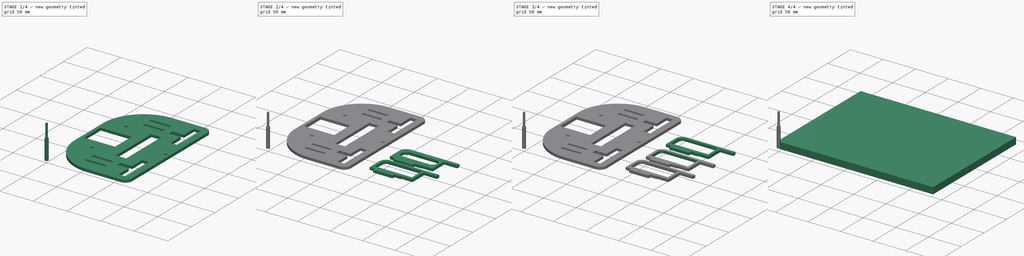
[diagram: build sequence overview — one tinted view per stage of 4, left to right]
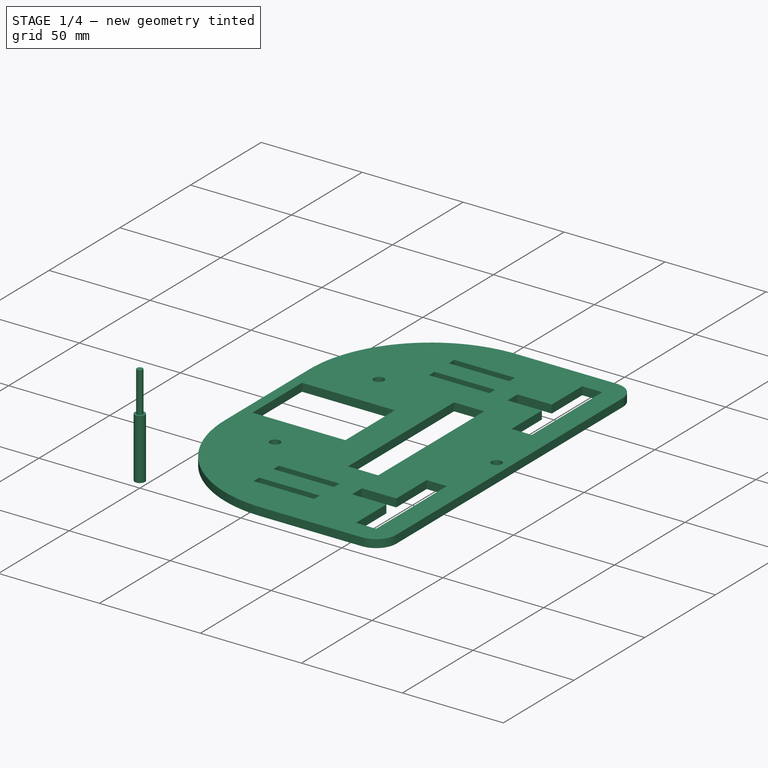
[diagram: stage 1 of 4 — iso view after this stage's code; geometry added in this stage tinted green]
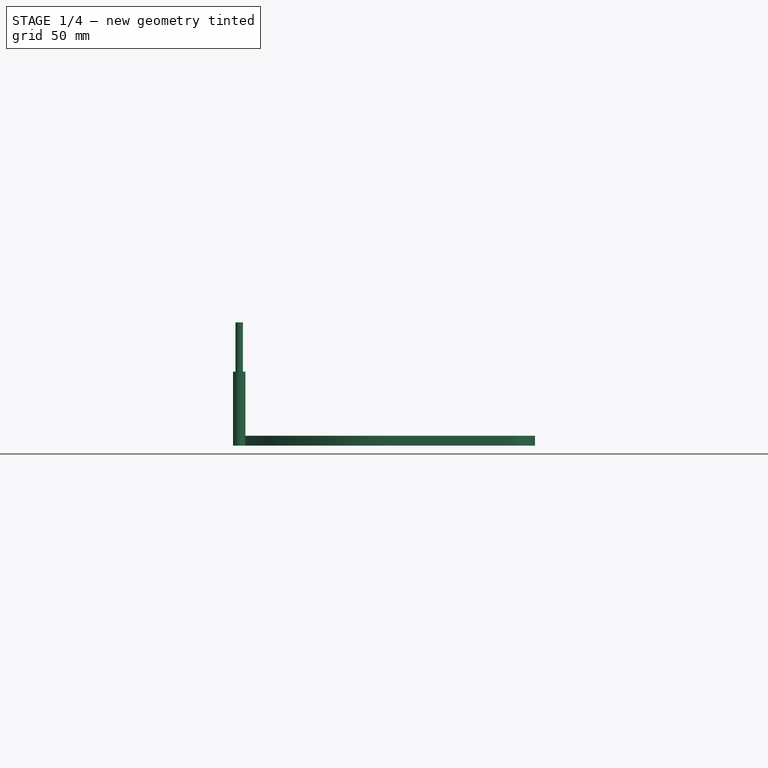
[diagram: stage 1 of 4 — front view after this stage's code; geometry added in this stage tinted green]
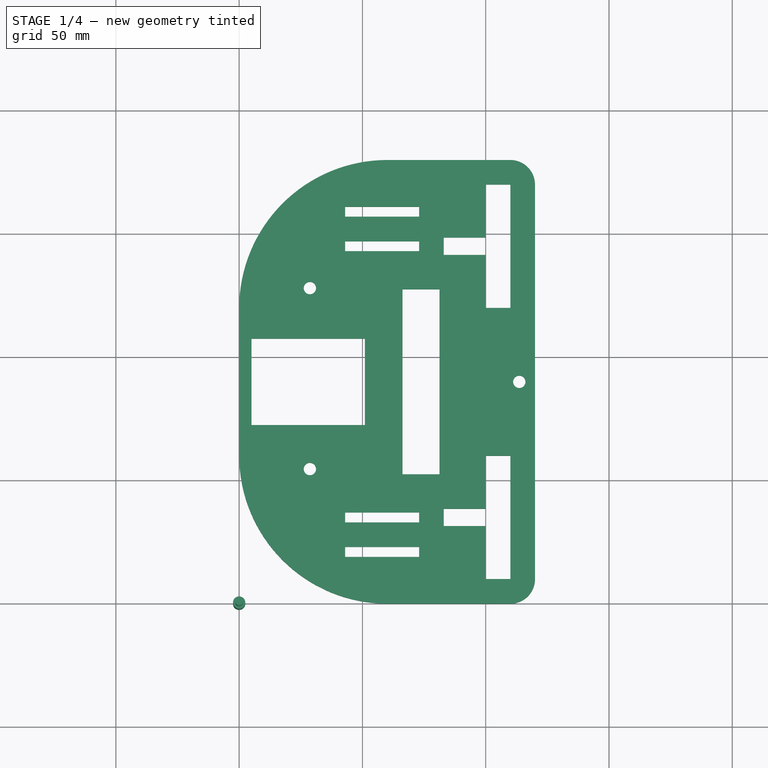
[diagram: stage 1 of 4 — top view after this stage's code; geometry added in this stage tinted green]
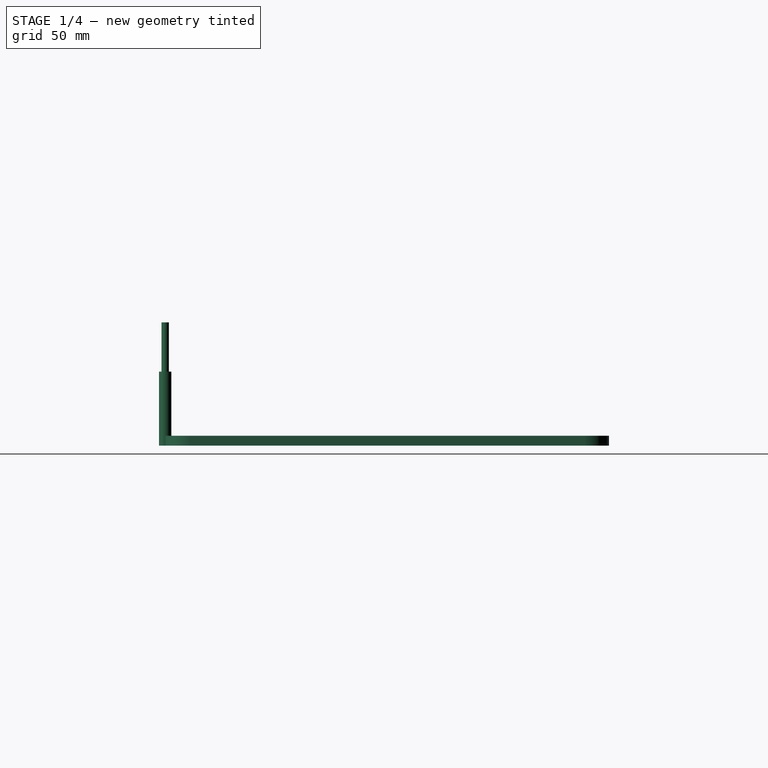
[diagram: stage 1 of 4 — right view after this stage's code; geometry added in this stage tinted green]
FCSTD DOCUMENT  (FreeCAD 0.21R33771 (Git))
Label: testframe_2
License: All rights reserved
LicenseURL: https://en.wikipedia.org/wiki/All_rights_reserved
objects: Part::FeaturePython×12, Path::FeaturePython×9, TechDraw::DrawViewDraft×5, App::DocumentObjectGroup×3, Sketcher::SketchObject×1, PartDesign::Body×1, TechDraw::DrawSVGTemplate×1, TechDraw::DrawPage×1, App::FeaturePython×1
note: 15 computed .brp shape members not serialized (recipe doc carries the construction recipe); baked Part::Feature solids carry a one-line shape summary decoded from their .brp

FEATURE [Part::FeaturePython] b_FRAME_BASE_001_  label="FRAME_BASE_001"  # a2plus imported part (geometry in sourceFile) (typed FeaturePython)
  a2p_Version = V0.1
  fixedPosition = true
  objectType = a2pPart
  sourceFile = ./FRAME_BASE.FCStd
  subassemblyImport = false
  timeLastImport = 1.75103e+09
  updateColors = true
FEATURE [TechDraw::DrawSVGTemplate] Template
  Height = 210
  Orientation = 1
  Template = <path>
  Width = 297
FEATURE [TechDraw::DrawViewDraft] DraftView
  Direction = (0,0,1)
  FontSize = 12
  LineSpacing = 1
  LineStyle = Solid
  LineWidth = 0.35
  LockPosition = false
  OverrideStyle = false
  Rotation = 0
  ScaleType = 2
  Source = -> b_FRAME_STRUT_01_001_003
  Symbol = <blob: 9717 chars omitted>
  X = 209.6
  Y = 29.1324
FEATURE [TechDraw::DrawViewDraft] DraftView001
  Direction = (0,0,1)
  FontSize = 12
  LineSpacing = 1
  LineStyle = Solid
  LineWidth = 0.35
  LockPosition = false
  OverrideStyle = false
  Rotation = 0
  ScaleType = 2
  Source = -> b_FRAME_STRUT_01_001_002
  Symbol = <blob: 8947 chars omitted>
  X = 209.6
  Y = 78.3595
FEATURE [TechDraw::DrawViewDraft] DraftView002
  Direction = (0,0,1)
  FontSize = 12
  LineSpacing = 1
  LineStyle = Solid
  LineWidth = 0.35
  LockPosition = false
  OverrideStyle = false
  Rotation = 0
  ScaleType = 2
  Source = -> b_FRAME_STRUT_01_001_001
  Symbol = <blob: 9847 chars omitted>
  X = 209.6
  Y = 127.587
FEATURE [TechDraw::DrawViewDraft] DraftView003
  Direction = (0,0,1)
  FontSize = 12
  LineSpacing = 1
  LineStyle = Solid
  LineWidth = 0.35
  LockPosition = false
  OverrideStyle = false
  Rotation = 0
  ScaleType = 2
  Source = -> b_FRAME_STRUT_01_001_
  Symbol = <blob: 9185 chars omitted>
  X = 209.6
  Y = 180.288
FEATURE [TechDraw::DrawViewDraft] DraftView004
  Direction = (0,0,1)
  FontSize = 12
  LineSpacing = 1
  LineStyle = Solid
  LineWidth = 0.35
  LockPosition = false
  OverrideStyle = false
  Rotation = 0
  ScaleType = 2
  Source = -> b_FRAME_BASE_001_
  Symbol = <blob: 17625 chars omitted>
  X = 71.7636
  Y = 110.502
FEATURE [TechDraw::DrawPage] Page
  KeepUpdated = true
  NextBalloonIndex = 1
  ProjectionType = 0
  Template = -> Template
  Views = -> [DraftView,DraftView001,DraftView002,DraftView003,DraftView004]
FEATURE [App::FeaturePython] SetupSheet  # Path/CAM operation (typed FeaturePython)
  ClearanceHeightExpression = OpStockZMax+SetupSheet.ClearanceHeightOffset
  ClearanceHeightOffset = 5
  CoolantMode = 0
  CoolantModes = None | Flood | Mist
  FinalDepthExpression = OpFinalDepth
  HorizRapid = 0
  SafeHeightExpression = OpStockZMax+SetupSheet.SafeHeightOffset
  SafeHeightOffset = 3
  StartDepthExpression = OpStartDepth
  StepDownExpression = OpToolDiameter
  VertRapid = 0
FEATURE [Part::FeaturePython] Clone  label="Model-FRAME_BASE_001"  # Draft clone (typed FeaturePython)
  AttacherType = Attacher::AttachEngine3D
  Fuse = false
  Objects = -> [b_FRAME_BASE_001_]
  PathResource = Model
  Scale = (1,1,1)
FEATURE [App::DocumentObjectGroup] Model
  Group = -> [Clone,Clone001,Clone002,Clone003,Clone004]
FEATURE [Part::FeaturePython] ToolBit  label="Endmill"  # Path/CAM toolbit (typed FeaturePython)
  BitPropertyNames = Chipload | CuttingEdgeHeight | Diameter | Flutes | Length | Material | ShankDiameter | SpindleDirection
  BitShape = <path>
  Chipload = 0
  CuttingEdgeHeight = 30
  Diameter = 5
  Flutes = 0
  Length = 50
  Material = 0
  ShankDiameter = 3
  ShapeName = endmill
  SpindleDirection = 0
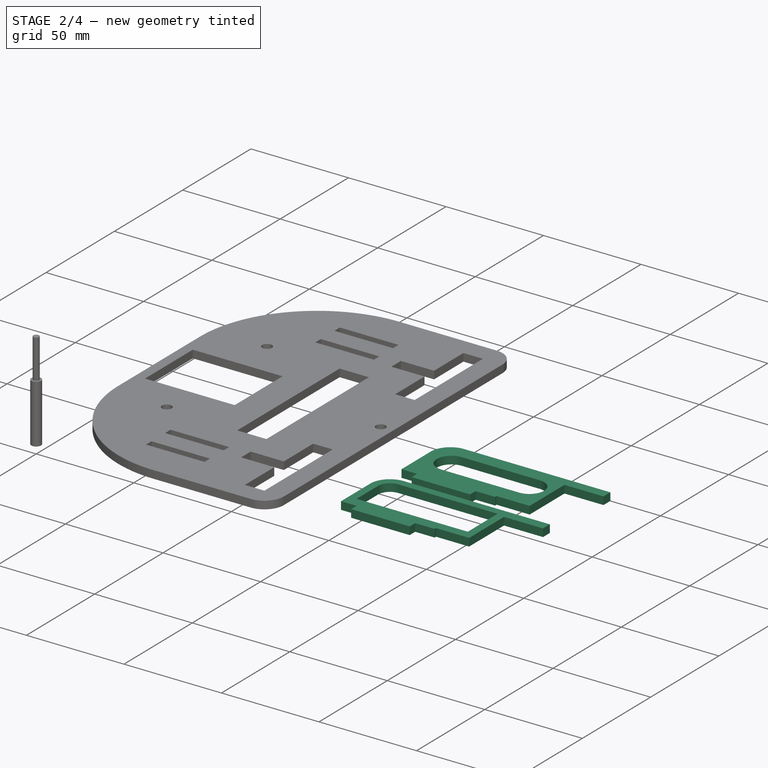
[diagram: stage 2 of 4 — iso view after this stage's code; geometry added in this stage tinted green]
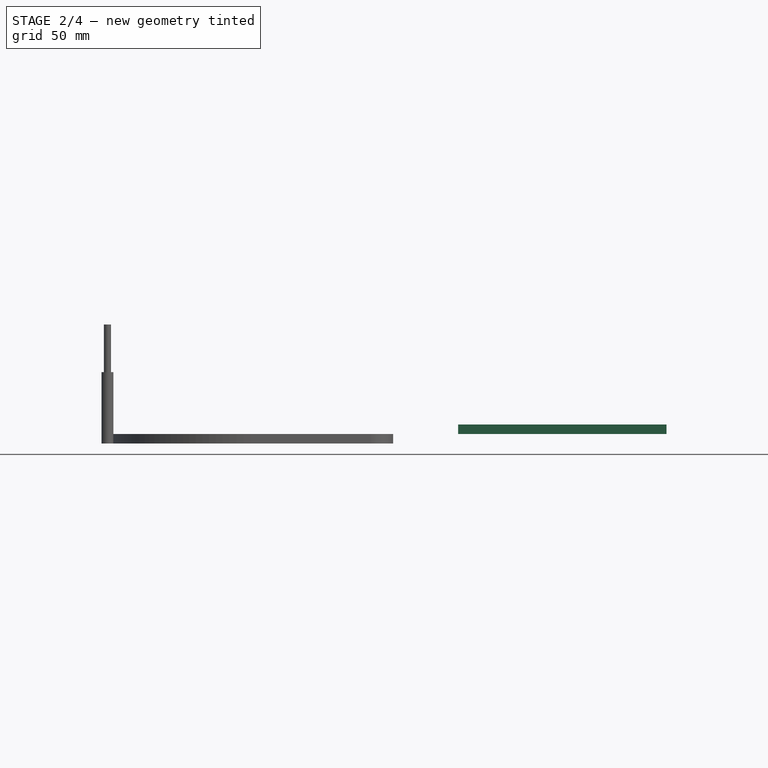
[diagram: stage 2 of 4 — front view after this stage's code; geometry added in this stage tinted green]
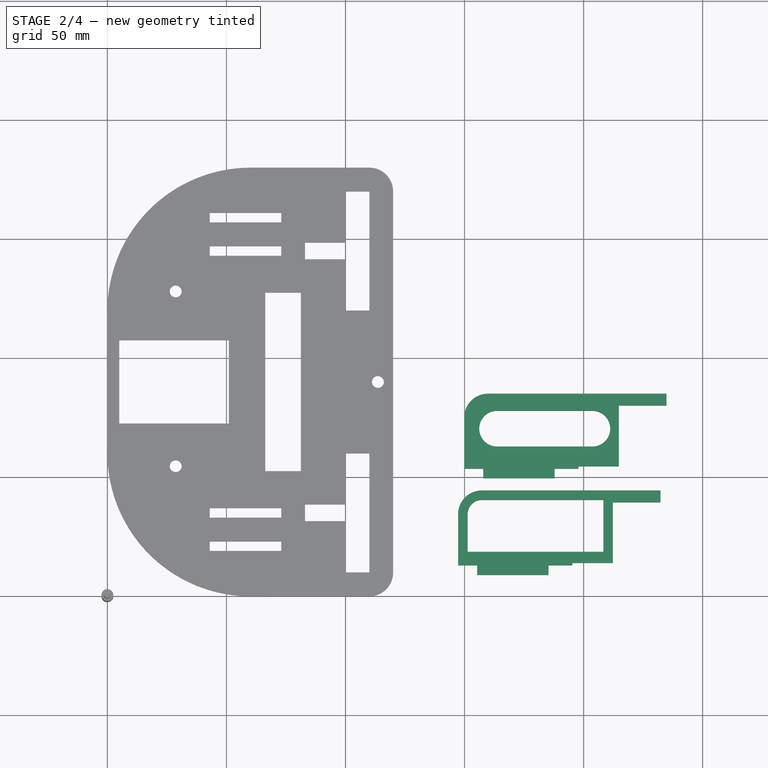
[diagram: stage 2 of 4 — top view after this stage's code; geometry added in this stage tinted green]
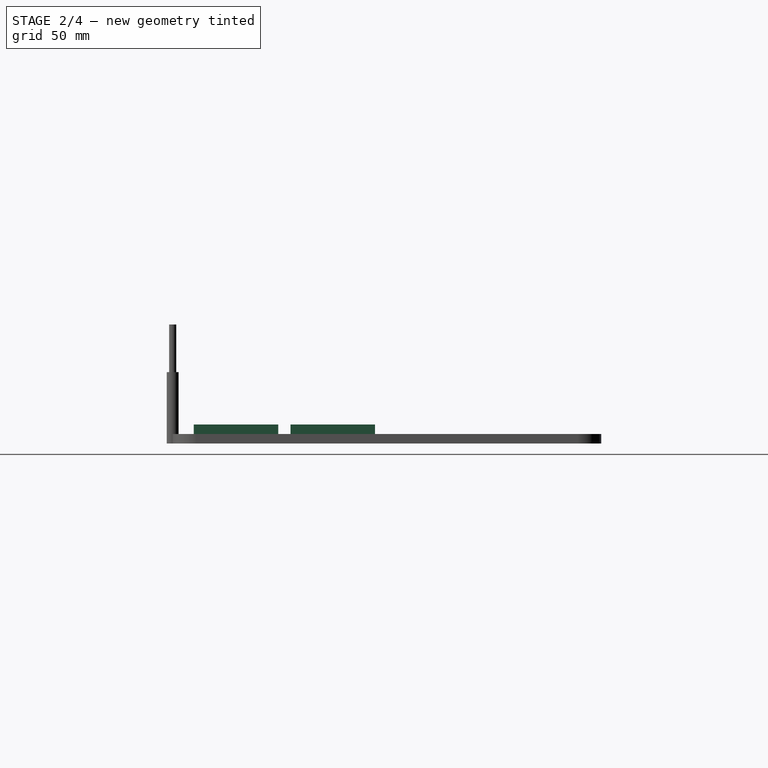
[diagram: stage 2 of 4 — right view after this stage's code; geometry added in this stage tinted green]
FEATURE [Part::FeaturePython] b_FRAME_STRUT_01_001_002  label="FRAME_STRUT_01_003"  # a2plus imported part (geometry in sourceFile) (typed FeaturePython)
  Placement = pos=(169.836,53.4892,3.99179) rot=(0,0,1;0rad)
  a2p_Version = V0.1
  fixedPosition = false
  objectType = a2pPart
  sourceFile = ./FRAME_STRUT_01.FCStd
  subassemblyImport = false
  timeLastImport = 1.75829e+09
  updateColors = true
FEATURE [Part::FeaturePython] b_FRAME_STRUT_01_001_003  label="FRAME_STRUT_01_004"  # a2plus imported part (geometry in sourceFile) (typed FeaturePython)
  Placement = pos=(167.277,12.859,3.99179) rot=(0,0,1;0rad)
  a2p_Version = V0.1
  fixedPosition = false
  objectType = a2pPart
  sourceFile = ./FRAME_STRUT_01.FCStd
  subassemblyImport = false
  timeLastImport = 1.75829e+09
  updateColors = true
FEATURE [Part::FeaturePython] Clone004  label="Model-FRAME_STRUT_01_004"  # Draft clone (typed FeaturePython)
  AttacherType = Attacher::AttachEngine3D
  Fuse = false
  Objects = -> [b_FRAME_STRUT_01_001_003]
  PathResource = Model
  Placement = pos=(167.277,12.859,3.99179) rot=(0,0,1;0rad)
  Scale = (1,1,1)
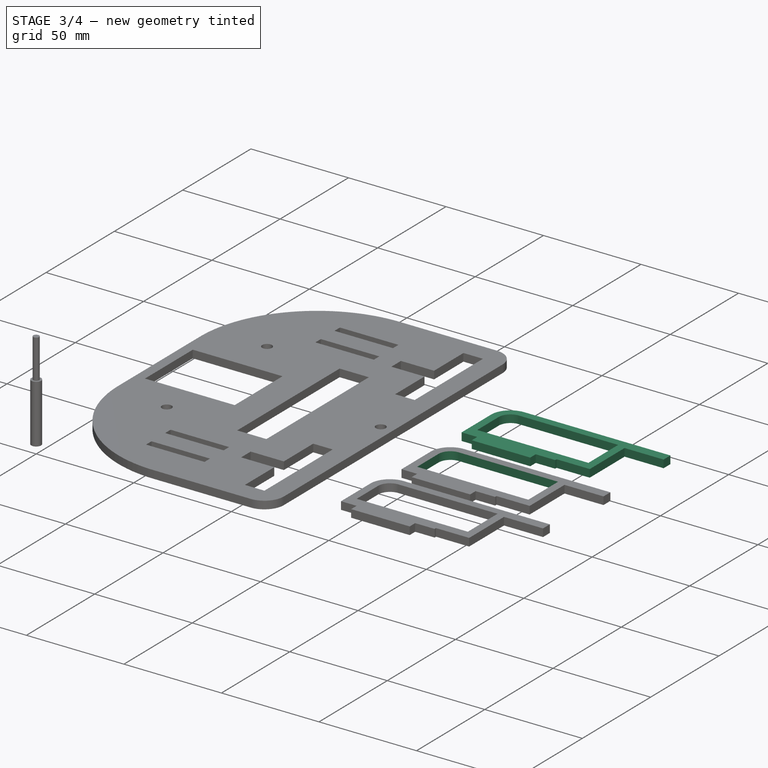
[diagram: stage 3 of 4 — iso view after this stage's code; geometry added in this stage tinted green]
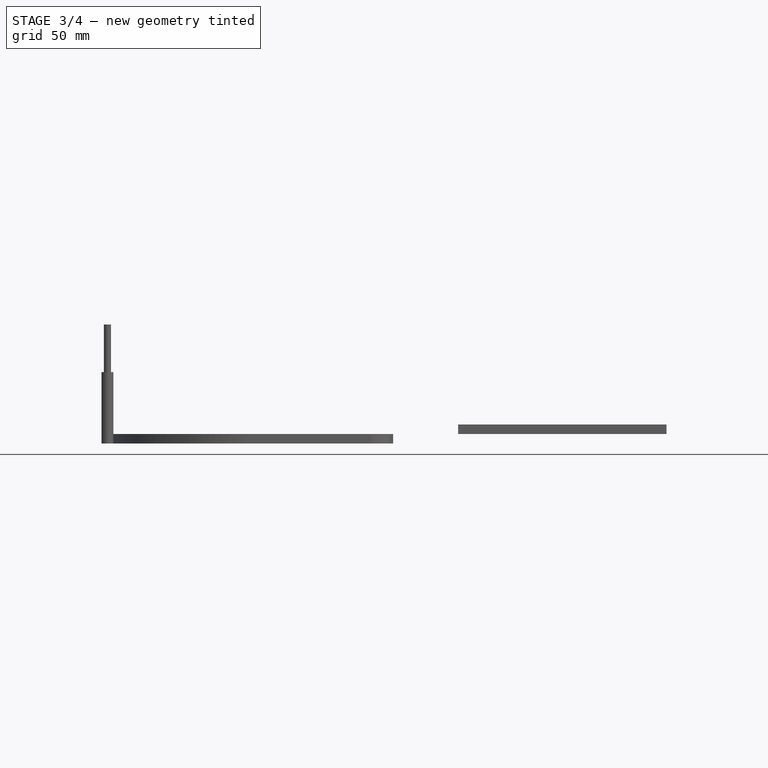
[diagram: stage 3 of 4 — front view after this stage's code; geometry added in this stage tinted green]
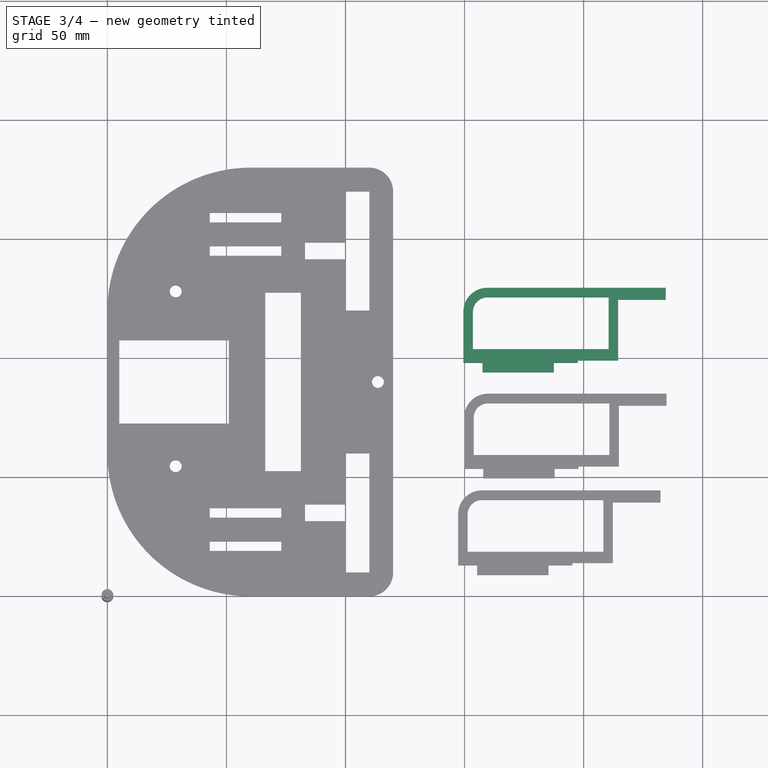
[diagram: stage 3 of 4 — top view after this stage's code; geometry added in this stage tinted green]
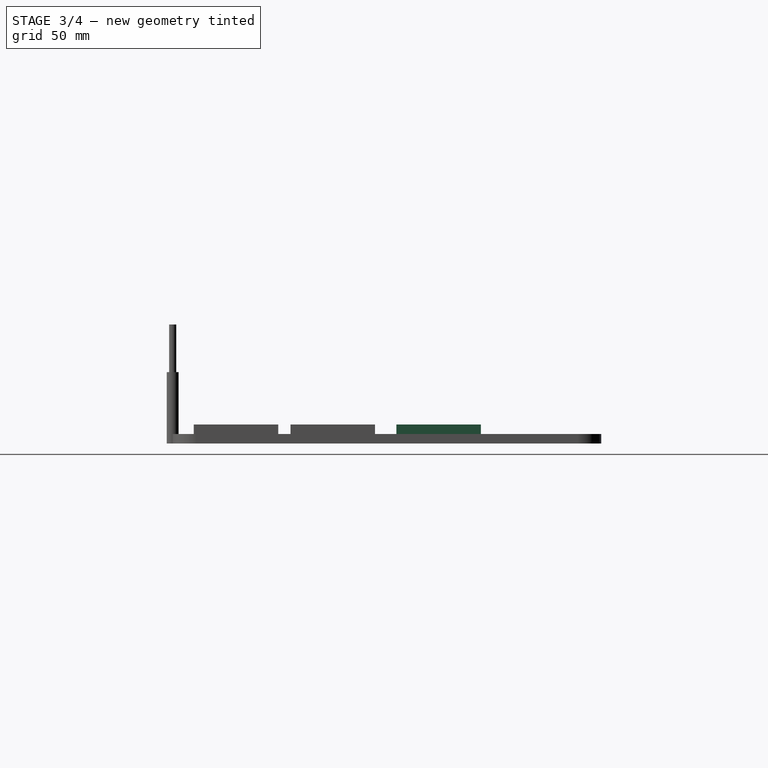
[diagram: stage 3 of 4 — right view after this stage's code; geometry added in this stage tinted green]
FEATURE [Part::FeaturePython] b_FRAME_STRUT_01_001_001  label="FRAME_STRUT_01_002"  # a2plus imported part (geometry in sourceFile) (typed FeaturePython)
  Placement = pos=(169.516,97.9584,3.99179) rot=(0,0,1;0rad)
  a2p_Version = V0.1
  fixedPosition = false
  objectType = a2pPart
  sourceFile = ./FRAME_STRUT_01.FCStd
  subassemblyImport = false
  timeLastImport = 1.75829e+09
  updateColors = true
FEATURE [Part::FeaturePython] Clone002  label="Model-FRAME_STRUT_01_002"  # Draft clone (typed FeaturePython)
  AttacherType = Attacher::AttachEngine3D
  Fuse = false
  Objects = -> [b_FRAME_STRUT_01_001_001]
  PathResource = Model
  Placement = pos=(169.516,97.9584,3.99179) rot=(0,0,1;0rad)
  Scale = (1,1,1)
FEATURE [Part::FeaturePython] Clone003  label="Model-FRAME_STRUT_01_003"  # Draft clone (typed FeaturePython)
  AttacherType = Attacher::AttachEngine3D
  Fuse = false
  Objects = -> [b_FRAME_STRUT_01_001_002]
  PathResource = Model
  Placement = pos=(169.836,53.4892,3.99179) rot=(0,0,1;0rad)
  Scale = (1,1,1)
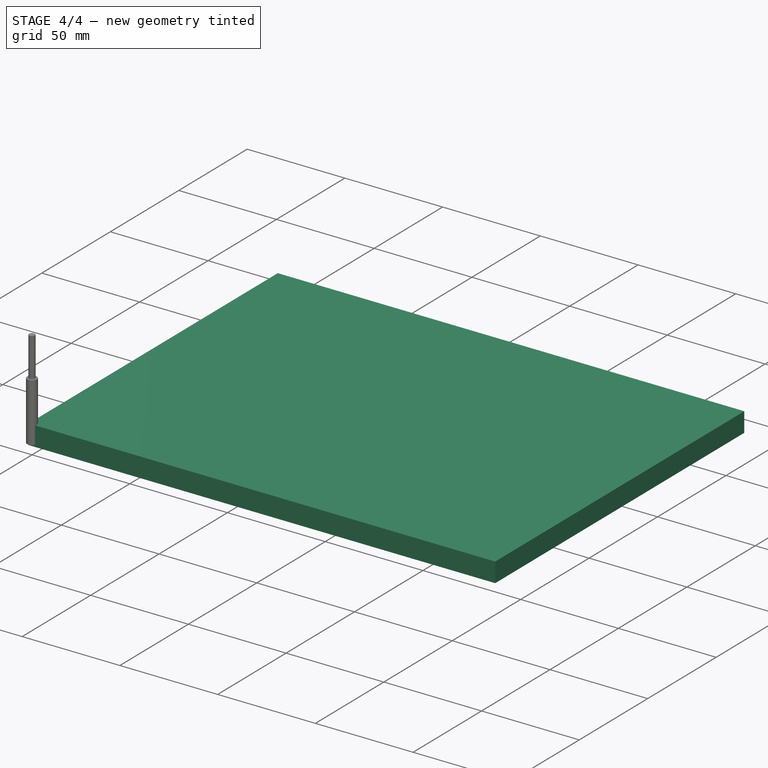
[diagram: stage 4 of 4 — iso view after this stage's code; geometry added in this stage tinted green]
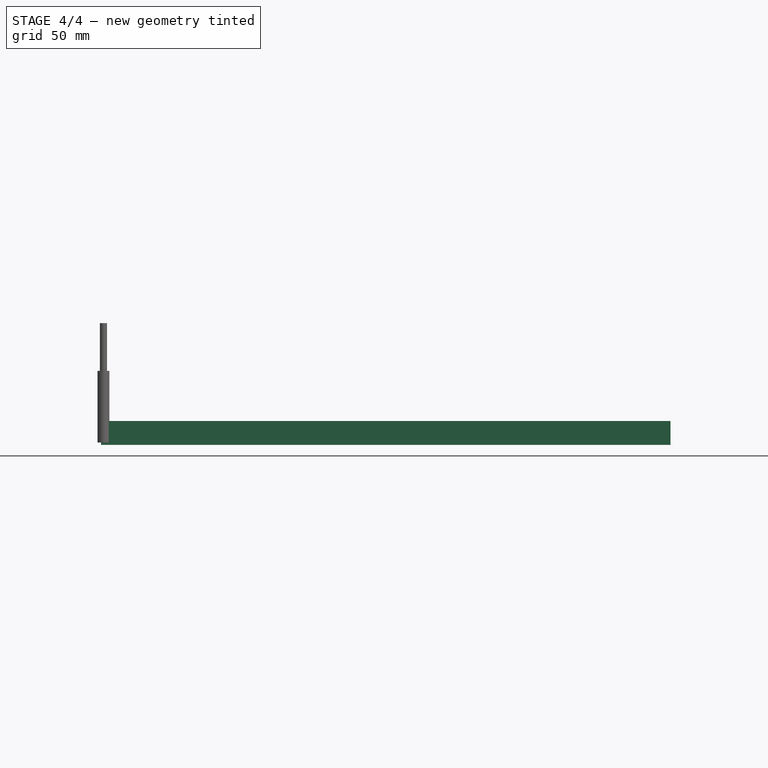
[diagram: stage 4 of 4 — front view after this stage's code; geometry added in this stage tinted green]
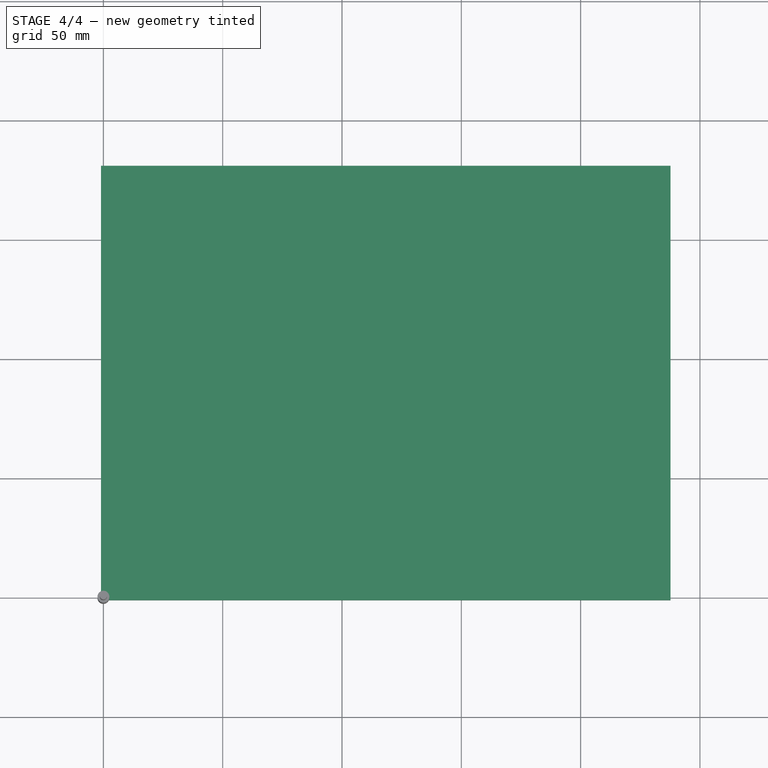
[diagram: stage 4 of 4 — top view after this stage's code; geometry added in this stage tinted green]
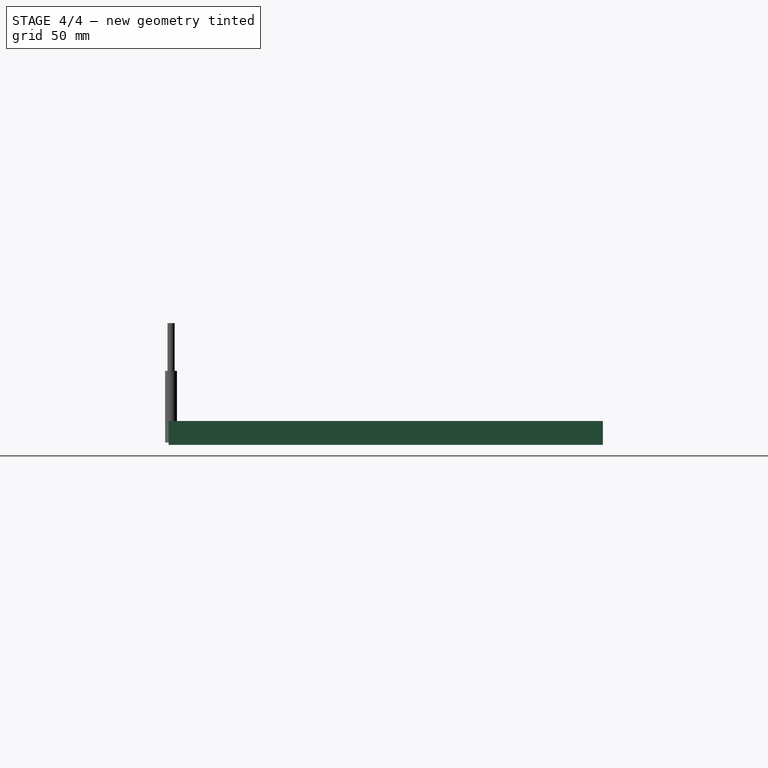
[diagram: stage 4 of 4 — right view after this stage's code; geometry added in this stage tinted green]
FEATURE [Sketcher::SketchObject] Sketch  label="A4"
  FullyConstrained = true
  MapMode = 5
  sketch-geometry (4):
    g0: LineSegment StartX=0 StartY=0 StartZ=0 EndX=270 EndY=0 EndZ=0
    g1: LineSegment StartX=270 StartY=0 StartZ=0 EndX=270 EndY=180 EndZ=0
    g2: LineSegment StartX=270 StartY=180 StartZ=0 EndX=0 EndY=180 EndZ=0
    g3: LineSegment StartX=0 StartY=180 StartZ=0 EndX=0 EndY=0 EndZ=0
  constraints (12):
    c: Coincident(g0,g1)
    c: Coincident(g1,g2)
    c: Coincident(g2,g3)
    c: Coincident(g3,g0)
    c: Horizontal(g0)
    c: Horizontal(g2)
    c: Vertical(g1)
    c: Vertical(g3)
    c: PointOnObject(g0,g-2)
    c: DistanceX(g2,g2) = 270
    c: DistanceY(g3,g3) = 180
    c: PointOnObject(g0,g-1)
FEATURE [PartDesign::Body] Body
  Group = -> [Sketch]
  Origin = -> Origin
FEATURE [Part::FeaturePython] b_FRAME_STRUT_01_001_  label="FRAME_STRUT_01_001"  # a2plus imported part (geometry in sourceFile) (typed FeaturePython)
  Placement = pos=(171.69,142.779,2) rot=(0,0,1;0rad)
  a2p_Version = V0.1
  fixedPosition = false
  objectType = a2pPart
  sourceFile = ./FRAME_STRUT_01.FCStd
  subassemblyImport = false
  timeLastImport = 1.75829e+09
  updateColors = true
FEATURE [Part::FeaturePython] Clone001  label="Model-FRAME_STRUT_01_001"  # Draft clone (typed FeaturePython)
  AttacherType = Attacher::AttachEngine3D
  Fuse = false
  Objects = -> [b_FRAME_STRUT_01_001_]
  PathResource = Model
  Placement = pos=(171.69,142.779,2) rot=(0,0,1;0rad)
  Scale = (1,1,1)
FEATURE [Path::FeaturePython] TC__Default_Tool  label="TC: Default Tool"  # Path/CAM operation (typed FeaturePython)
  HorizFeed = 0
  HorizRapid = 0
  SpindleDir = 0
  SpindleSpeed = 0
  Tool = -> ToolBit
  ToolNumber = 1
  VertFeed = 0
  VertRapid = 0
  expr: HorizRapid = SetupSheet.HorizRapid
  expr: VertRapid = SetupSheet.VertRapid
FEATURE [App::DocumentObjectGroup] Tools
  Group = -> [TC__Default_Tool]
FEATURE [Part::FeaturePython] Stock  # WARN: FeaturePython — macro-defined, semantics opaque (R4)
  Base = -> Model
  ExtXneg = 1
  ExtXpos = 1
  ExtYneg = 1
  ExtYpos = 1
  ExtZneg = 1
  ExtZpos = 1
  Placement = pos=(0,-2.8e-14,0) rot=(0,0,1;0rad)
  StockType = FromBase
FEATURE [Path::FeaturePython] Profile  # Path/CAM operation (typed FeaturePython)
  Active = true
  AreaParams:
    Tolerance = 1e-07
    FitArcs = True
    Simplify = False
    CleanDistance = 0.0
    Accuracy = 0.01
    Unit = 1.0
    MinArcPoints = 4
    MaxArcPoints = 100
    ClipperScale = 10000000.0
    Fill = 0
    Coplanar = 0
    Reorient = True
    Outline = False
    Explode = False
    OpenMode = 0
    Deflection = 0.01
    SubjectFill = 0
    ClipFill = 0
    Offset = -1.0
    ExtraPass = 0
    Stepover = 0.0
    LastStepover = 0.0
    JoinType = 0
    EndType = 0
    MiterLimit = 2.0
    RoundPrecision = 0.0
    PocketMode = 0
    ToolRadius = 1.0
    PocketExtraOffset = 0.0
    PocketStepover = 0.0
    PocketLastStepover = 0.0
    FromCenter = False
    Angle = 45.0
    AngleShift = 0.0
    Shift = 0.0
    Thicken = False
    SectionCount = -1
    Stepdown = 1.0
    SectionOffset = 0.0
    SectionTolerance = 1e-06
    SectionMode = 2
    Project = False
  ClearanceHeight = 13.9918
  CoolantMode = 0
  CycleTime = Cycletime Error
  Direction = 0
  FinalDepth = 0
  HandleMultipleFeatures = 0
  JoinType = 0
  MiterLimit = 0.1
  OffsetExtra = -1
  OpFinalDepth = -1
  OpStartDepth = 8.99179
  OpStockZMax = 8.99179
  OpStockZMin = -1
  OpToolDiameter = 5
  PathParams = {'orientation': 1, 'feedrate': 0.0, 'feedrate_v': 0.0, 'verbose': True, 'resume_height': 11.991790771484375, 'retraction': 13.991790771484375, 'return_end': True, 'preamble': False, 'start': Vector (159.57634399727655, 83.9853946449354, 13.991790771484375)}
  SafeHeight = 11.9918
  Side = 0
  SplitArcs = false
  StartDepth = 0
  StartPoint = (0,0,0)
  StepDown = 0.01
  ToolController = -> TC__Default_Tool
  UseComp = false
  UseStartPoint = false
  processCircles = false
  processHoles = false
  processPerimeter = true
  expr: ClearanceHeight = OpStockZMax + SetupSheet.ClearanceHeightOffset
  expr: FinalDepth = 0
  expr: SafeHeight = OpStockZMax + SetupSheet.SafeHeightOffset
  expr: StartDepth = 0
  expr: StepDown = 0.01
FEATURE [Path::FeaturePython] Engrave  # Path/CAM operation (typed FeaturePython)
  Active = true
  Base = -> [Clone]
  ClearanceHeight = 13.9918
  CoolantMode = 0
  CycleTime = Cycletime Error
  FinalDepth = 2.99179
  OpFinalDepth = 2.99179
  OpStartDepth = 7.99179
  OpStockZMax = 8.99179
  OpStockZMin = -1
  OpToolDiameter = 5
  SafeHeight = 11.9918
  StartDepth = 7.99179
  StartVertex = 0
  StepDown = 5
  ToolController = -> TC__Default_Tool
  expr: ClearanceHeight = OpStockZMax + SetupSheet.ClearanceHeightOffset
  expr: FinalDepth = OpFinalDepth
  expr: SafeHeight = OpStockZMax + SetupSheet.SafeHeightOffset
  expr: StartDepth = OpStartDepth
  expr: StepDown = OpToolDiameter
FEATURE [Path::FeaturePython] Engrave001  # Path/CAM operation (typed FeaturePython)
  Active = true
  ClearanceHeight = 13.9918
  CoolantMode = 0
  CycleTime = Cycletime Error
  FinalDepth = 2.99179
  OpFinalDepth = 2.99179
  OpStartDepth = 7.99179
  OpStockZMax = 8.99179
  OpStockZMin = -1
  OpToolDiameter = 5
  SafeHeight = 11.9918
  StartDepth = 7.99179
  StartVertex = 0
  StepDown = 5
  ToolController = -> TC__Default_Tool
  expr: ClearanceHeight = OpStockZMax + SetupSheet.ClearanceHeightOffset
  expr: FinalDepth = OpFinalDepth
  expr: SafeHeight = OpStockZMax + SetupSheet.SafeHeightOffset
  expr: StartDepth = OpStartDepth
  expr: StepDown = OpToolDiameter
FEATURE [Path::FeaturePython] Engrave002  # Path/CAM operation (typed FeaturePython)
  Active = true
  Base = -> [Clone002]
  ClearanceHeight = 13.9918
  CoolantMode = 0
  CycleTime = Cycletime Error
  FinalDepth = 2.99179
  OpFinalDepth = 2.99179
  OpStartDepth = 7.99179
  OpStockZMax = 8.99179
  OpStockZMin = -1
  OpToolDiameter = 5
  SafeHeight = 11.9918
  StartDepth = 7.99179
  StartVertex = 0
  StepDown = 5
  ToolController = -> TC__Default_Tool
  expr: ClearanceHeight = OpStockZMax + SetupSheet.ClearanceHeightOffset
  expr: FinalDepth = OpFinalDepth
  expr: SafeHeight = OpStockZMax + SetupSheet.SafeHeightOffset
  expr: StartDepth = OpStartDepth
  expr: StepDown = OpToolDiameter
FEATURE [Path::FeaturePython] Engrave003  # Path/CAM operation (typed FeaturePython)
  Active = true
  Base = -> [Clone003]
  ClearanceHeight = 13.9918
  CoolantMode = 0
  CycleTime = Cycletime Error
  FinalDepth = 2.99179
  OpFinalDepth = 2.99179
  OpStartDepth = 7.99179
  OpStockZMax = 8.99179
  OpStockZMin = -1
  OpToolDiameter = 5
  SafeHeight = 11.9918
  StartDepth = 7.99179
  StartVertex = 0
  StepDown = 5
  ToolController = -> TC__Default_Tool
  expr: ClearanceHeight = OpStockZMax + SetupSheet.ClearanceHeightOffset
  expr: FinalDepth = OpFinalDepth
  expr: SafeHeight = OpStockZMax + SetupSheet.SafeHeightOffset
  expr: StartDepth = OpStartDepth
  expr: StepDown = OpToolDiameter
FEATURE [Path::FeaturePython] Engrave004  # Path/CAM operation (typed FeaturePython)
  Active = true
  Base = -> [Clone004]
  ClearanceHeight = 13.9918
  CoolantMode = 0
  CycleTime = Cycletime Error
  FinalDepth = 2.99179
  OpFinalDepth = 2.99179
  OpStartDepth = 7.99179
  OpStockZMax = 8.99179
  OpStockZMin = -1
  OpToolDiameter = 5
  SafeHeight = 11.9918
  StartDepth = 7.99179
  StartVertex = 0
  StepDown = 5
  ToolController = -> TC__Default_Tool
  expr: ClearanceHeight = OpStockZMax + SetupSheet.ClearanceHeightOffset
  expr: FinalDepth = OpFinalDepth
  expr: SafeHeight = OpStockZMax + SetupSheet.SafeHeightOffset
  expr: StartDepth = OpStartDepth
  expr: StepDown = OpToolDiameter
FEATURE [Path::FeaturePython] Engrave005  # Path/CAM operation (typed FeaturePython)
  Active = true
  Base = -> [Clone]
  ClearanceHeight = 13.9918
  CoolantMode = 0
  CycleTime = Cycletime Error
  FinalDepth = 2.99179
  OpFinalDepth = 2.99179
  OpStartDepth = 7.99179
  OpStockZMax = 8.99179
  OpStockZMin = -1
  OpToolDiameter = 5
  SafeHeight = 11.9918
  StartDepth = 7.99179
  StartVertex = 0
  StepDown = 5
  ToolController = -> TC__Default_Tool
  expr: ClearanceHeight = OpStockZMax + SetupSheet.ClearanceHeightOffset
  expr: FinalDepth = OpFinalDepth
  expr: SafeHeight = OpStockZMax + SetupSheet.SafeHeightOffset
  expr: StartDepth = OpStartDepth
  expr: StepDown = OpToolDiameter
FEATURE [App::DocumentObjectGroup] Operations
  Group = -> [Profile,Engrave,Engrave001,Engrave002,Engrave003,Engrave004,Engrave005]
FEATURE [Path::FeaturePython] Job  # Path/CAM operation (typed FeaturePython)
  CycleTime = 00:00:00
  Fixtures = G54
  GeometryTolerance = 0.01
  JobType = 0
  LastPostProcessDate = 2025-06-27 16:36:09.687680
  LastPostProcessOutput = <userpath>\Documents\papyrusplane\NC\testframe_2.nc
  Model = -> Model
  Operations = -> Operations
  OrderOutputBy = 0
  PostProcessor = 1
  SetupSheet = -> SetupSheet
  SplitOutput = false
  Stock = -> Stock
  Tools = -> Tools
note: 2 file-system paths scrubbed to <path> (originals preserved in the JSON sidecar)
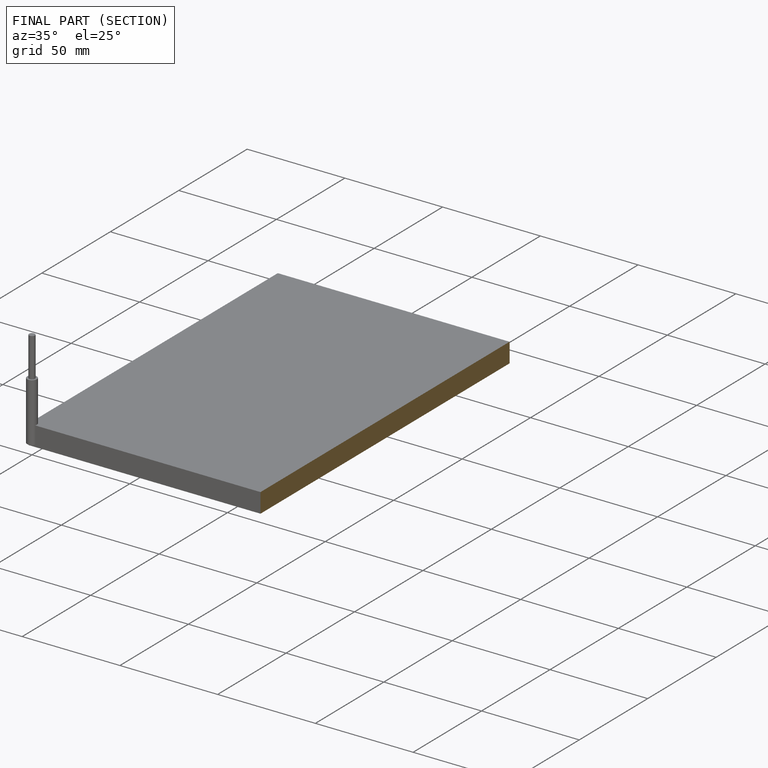
[diagram: finished part — half-section view (interior)]
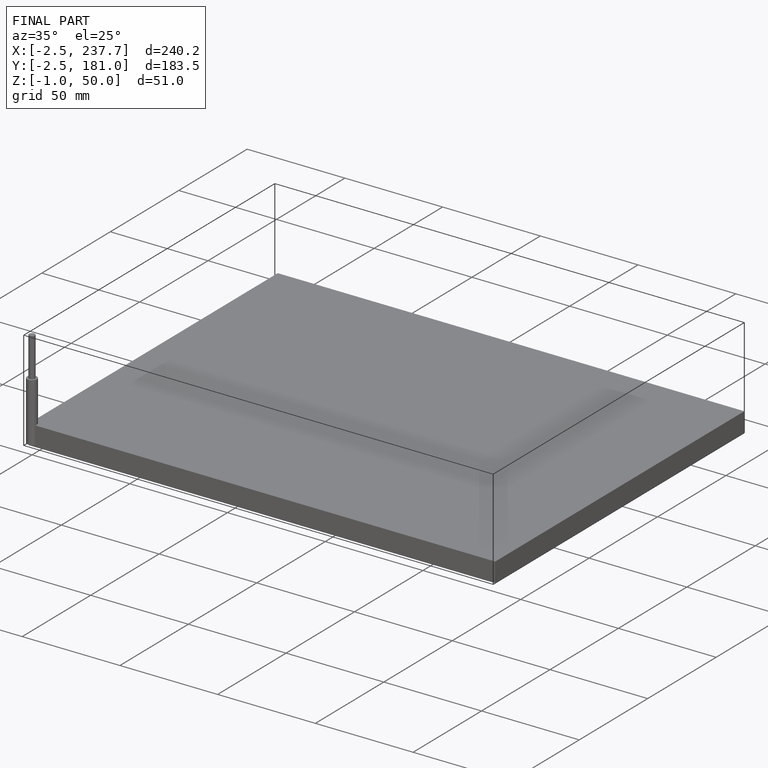
[diagram: finished part — iso view with bounding-box wireframe]
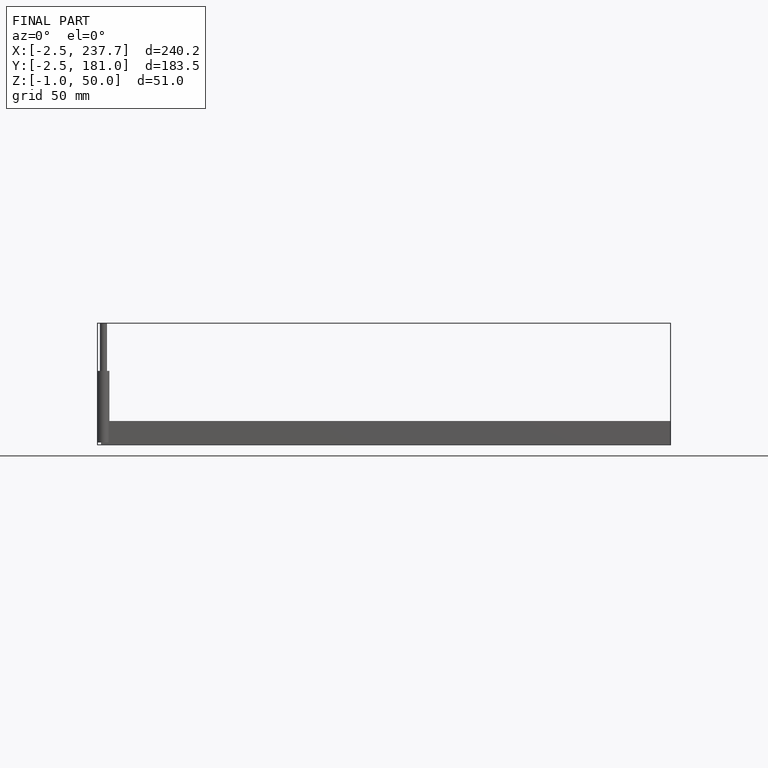
[diagram: finished part — front view with bounding-box wireframe]
